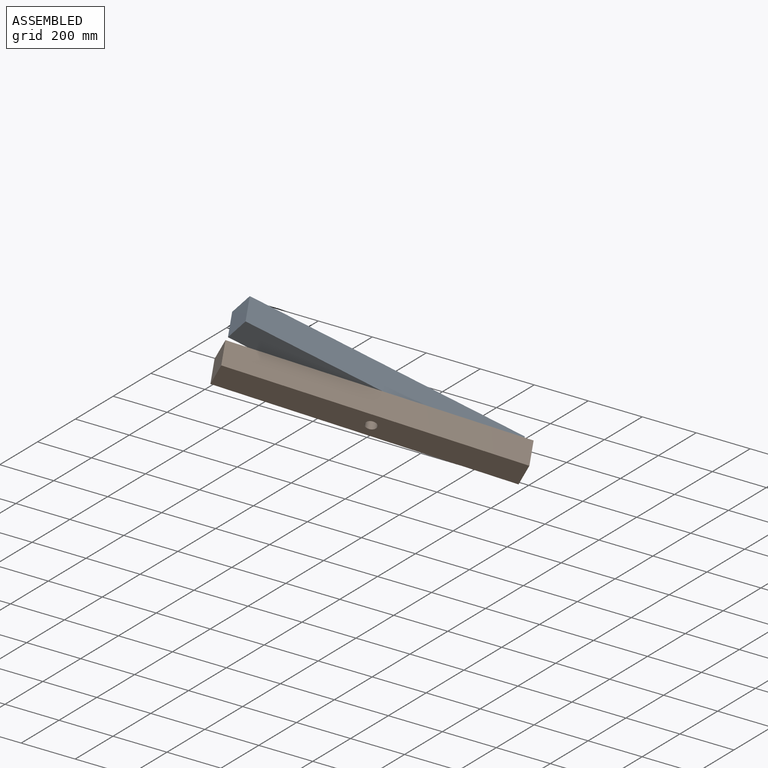
[diagram: assembled view]
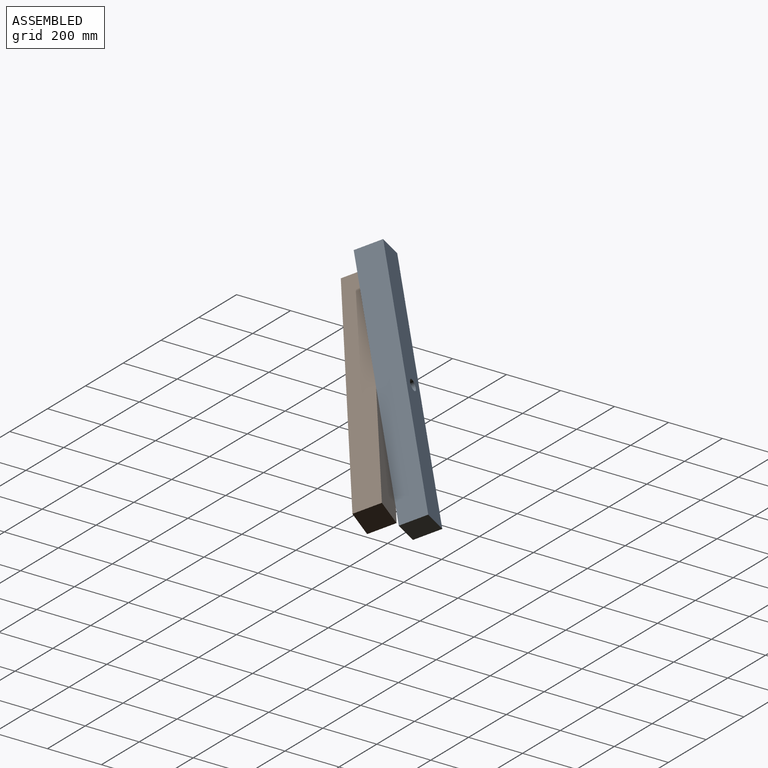
[diagram: assembled view, second angle]
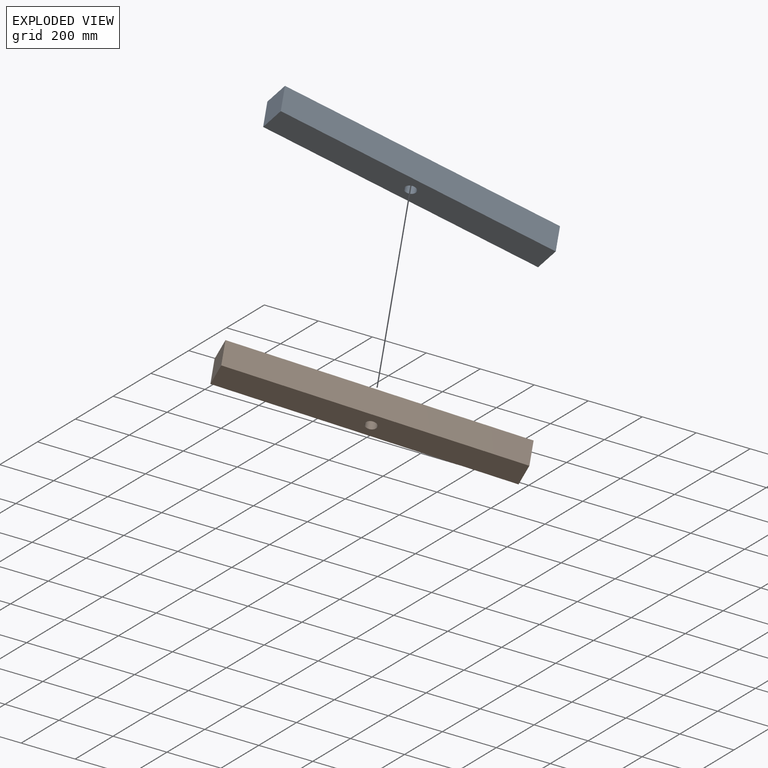
[diagram: exploded view]
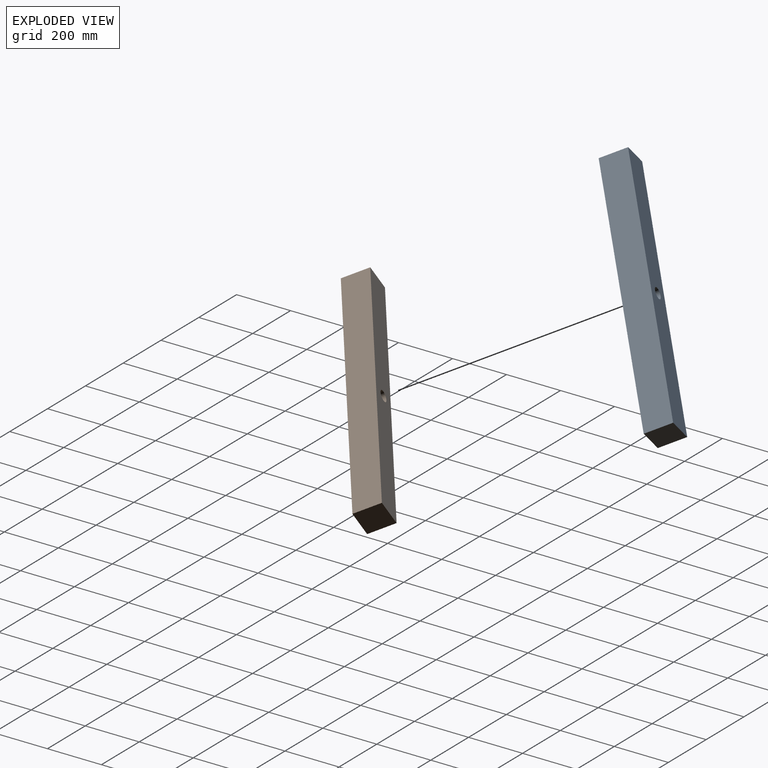
[diagram: exploded view, second angle]
ASSEMBLY  parts=2 mates=2
PART A: 7 faces, bbox 100x1000x100 mm
  f0: plane 1000x100mm, normal (0,0,1), area 100000mm2, adj f1,f3,f4,f5
  f1: plane 100x100mm, normal (0,-1,0), area 10000mm2, adj f0,f2,f4,f5
  f2: plane 1000x100mm, normal (0,0,-1), area 100000mm2, adj f1,f3,f4,f5
  f3: plane 100x100mm, normal (0,1,0), area 10000mm2, adj f0,f2,f4,f5
  f4: plane 1000x100mm, normal (1,0,0), area 98743.4mm2, adj f0,f1,f2,f3,f6
  f5: plane 1000x100mm, normal (-1,0,0), area 98743.4mm2, adj f0,f1,f2,f3,f6
  f6: cylinder r=20mm len=100mm, axis (1,0,0), area 12566.4mm2, adj f4,f5
PART B: same geometry as A
PLACE A rot(axis=(-0.26,0.6,-0.76),68.7deg) t=(588.94,26.03,-639.06)mm
PLACE B rot(axis=(-0.48,-0.87,0.05),146.8deg) t=(670.43,-135.12,-725.03)mm
MATE pin_slot A.f6 <-> B.f6  axis (0.41,-0.81,-0.43) through (629.69,-54.54,-682.05)mm
MATE revolute A.f6 <-> B.f6  axis (0.41,-0.81,-0.43) through (629.69,-54.54,-682.05)mm
